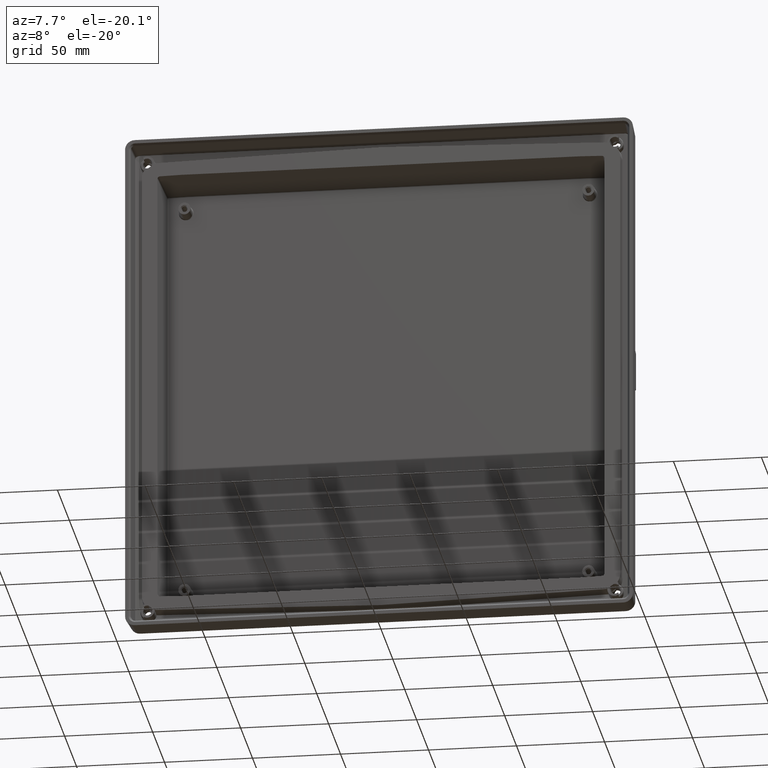
[diagram: clean part render]
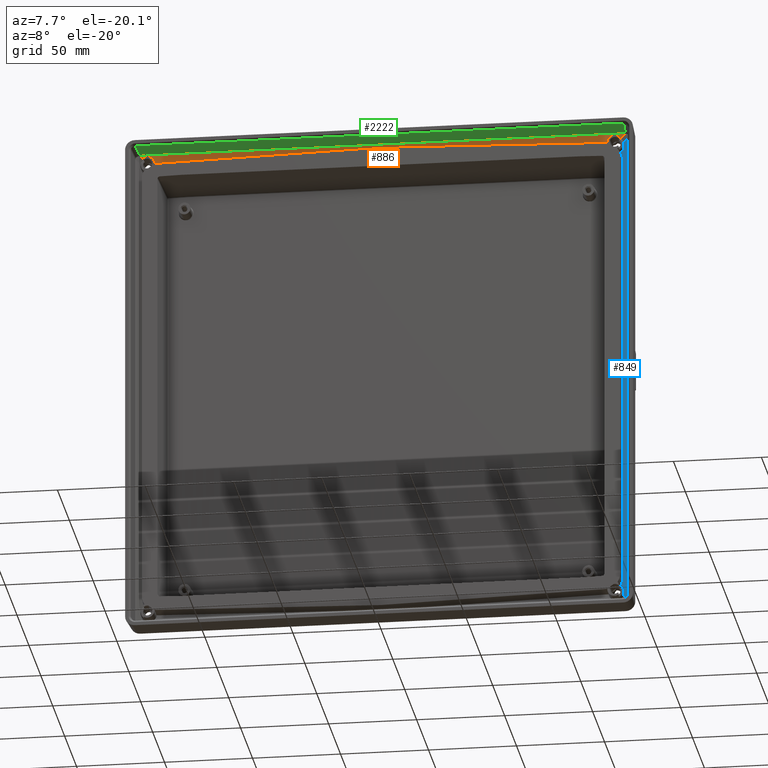
[diagram: same view with three faces highlighted in distinct colors, each labeled with its STEP entity id]
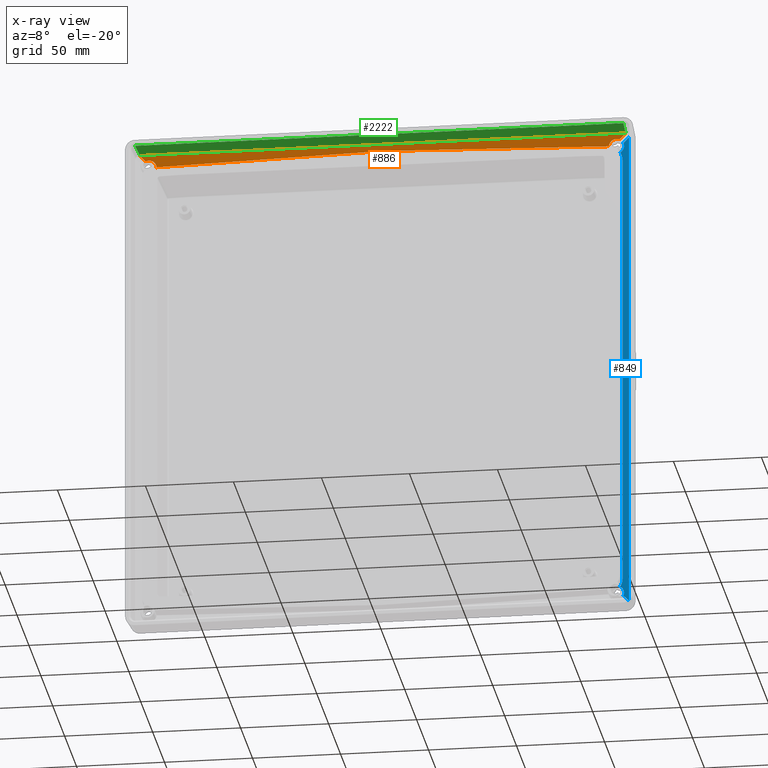
[diagram: x-ray of the same camera — body ghosted, the three highlighted faces saturated]
A machine part, auxiliary view with three faces highlighted in distinct colors.
The next image is the same camera in x-ray (body ghosted, the three faces saturated) — at least one of them is partly hidden behind the body in this view.
Their STEP definitions:

[orange] entity #886 — the highlighted planar face has unit normal (-0, -0.9954, -0.0958).
#255 = EDGE_CURVE ( 'NONE', #4577, #4870, #6030, .T. ) ;
#886 = ADVANCED_FACE ( 'NONE', ( #8570 ), #8564, .T. ) ;
#887 = EDGE_LOOP ( 'NONE', ( #888, #891, #894, #897, #899, #1008, #1011, #1013, #1014, #1015, #1016 ) ) ;
#888 = ORIENTED_EDGE ( 'NONE', *, *, #889, .F. ) ;
#889 = EDGE_CURVE ( 'NONE', #890, #4467, #8565, .T. ) ;
#890 = VERTEX_POINT ( 'NONE', #8556 ) ;
#891 = ORIENTED_EDGE ( 'NONE', *, *, #892, .F. ) ;
#892 = EDGE_CURVE ( 'NONE', #893, #890, #8555, .T. ) ;
#893 = VERTEX_POINT ( 'NONE', #8554 ) ;
#894 = ORIENTED_EDGE ( 'NONE', *, *, #895, .T. ) ;
#895 = EDGE_CURVE ( 'NONE', #893, #4803, #8596, .T. ) ;
#897 = ORIENTED_EDGE ( 'NONE', *, *, #4802, .T. ) ;
#899 = ORIENTED_EDGE ( 'NONE', *, *, #906, .T. ) ;
#906 = EDGE_CURVE ( 'NONE', #4804, #908, #8576, .T. ) ;
#908 = VERTEX_POINT ( 'NONE', #8572 ) ;
#1008 = ORIENTED_EDGE ( 'NONE', *, *, #1010, .T. ) ;
#1010 = EDGE_CURVE ( 'NONE', #908, #5002, #8805, .T. ) ;
#1011 = ORIENTED_EDGE ( 'NONE', *, *, #4575, .F. ) ;
#1013 = ORIENTED_EDGE ( 'NONE', *, *, #255, .T. ) ;
#1014 = ORIENTED_EDGE ( 'NONE', *, *, #4869, .T. ) ;
#1015 = ORIENTED_EDGE ( 'NONE', *, *, #11764, .T. ) ;
#1016 = ORIENTED_EDGE ( 'NONE', *, *, #4464, .T. ) ;
#2261 = CARTESIAN_POINT ( 'NONE',  ( -128.2524159291029100, 7.768420020449385200, 134.2647887320945000 ) ) ;
#2262 = CARTESIAN_POINT ( 'NONE',  ( -128.4175955402895700, 7.769956374794990200, 134.2488330821595100 ) ) ;
#2264 = CARTESIAN_POINT ( 'NONE',  ( -128.5001006759299000, 7.770836529166409400, 134.2396923295205200 ) ) ;
#2276 = B_SPLINE_CURVE_WITH_KNOTS ( 'NONE', 3,
 ( #2264, #2262, #2261, #2393, #2391, #2389 ),
 .UNSPECIFIED., .F., .F.,
 ( 4, 1, 1, 4 ),
 ( 0.0000000000000000000, 0.0002489694546343755900, 0.0004979063370154125400, 0.0007468106473888392500 ),
 .UNSPECIFIED. ) ;
#2389 = CARTESIAN_POINT ( 'NONE',  ( -127.7552400166260000, 7.765937555912247900, 134.2905701120499800 ) ) ;
#2391 = CARTESIAN_POINT ( 'NONE',  ( -127.8382044720705600, 7.766145752610099400, 134.2884079066720100 ) ) ;
#2393 = CARTESIAN_POINT ( 'NONE',  ( -128.0040037234524600, 7.766786210836766500, 134.2817564936748300 ) ) ;
#4460 = VERTEX_POINT ( 'NONE', #15584 ) ;
#4464 = EDGE_CURVE ( 'NONE', #4460, #4467, #15582, .T. ) ;
#4467 = VERTEX_POINT ( 'NONE', #15577 ) ;
#4575 = EDGE_CURVE ( 'NONE', #4577, #5002, #15855, .T. ) ;
#4577 = VERTEX_POINT ( 'NONE', #15851 ) ;
#4802 = EDGE_CURVE ( 'NONE', #4803, #4804, #16430, .T. ) ;
#4803 = VERTEX_POINT ( 'NONE', #16421 ) ;
#4804 = VERTEX_POINT ( 'NONE', #16431 ) ;
#4869 = EDGE_CURVE ( 'NONE', #4870, #4871, #16642, .T. ) ;
#4870 = VERTEX_POINT ( 'NONE', #16606 ) ;
#4871 = VERTEX_POINT ( 'NONE', #16641 ) ;
#5002 = VERTEX_POINT ( 'NONE', #17484 ) ;
#6020 = CARTESIAN_POINT ( 'NONE',  ( -134.0295040380416100, 7.386856864898802200, 138.2274736136379000 ) ) ;
#6021 = CARTESIAN_POINT ( 'NONE',  ( -134.5996398206980000, 7.410411838996680000, 137.9828458544190500 ) ) ;
#6030 = B_SPLINE_CURVE_WITH_KNOTS ( 'NONE', 3,
 ( #6021, #6020, #6043, #6042 ),
 .UNSPECIFIED., .F., .F.,
 ( 4, 4 ),
 ( 0.0000000000000000000, 0.2142173918799617800 ),
 .UNSPECIFIED. ) ;
#6042 = CARTESIAN_POINT ( 'NONE',  ( -132.8500003376093700, 7.375137241946365700, 138.3493657839435700 ) ) ;
#6043 = CARTESIAN_POINT ( 'NONE',  ( -133.4462908770192400, 7.375100147021089300, 138.3495717971571300 ) ) ;
#8548 = CARTESIAN_POINT ( 'NONE',  ( 127.7552400167181200, 7.765937555912554300, 134.2905701120463700 ) ) ;
#8549 = CARTESIAN_POINT ( 'NONE',  ( 127.8382044720705600, 7.766145752610103000, 134.2884079066719800 ) ) ;
#8550 = CARTESIAN_POINT ( 'NONE',  ( 128.0040037234524600, 7.766786210836770000, 134.2817564936747500 ) ) ;
#8551 = CARTESIAN_POINT ( 'NONE',  ( 128.2524159291029100, 7.768420020449387000, 134.2647887320944400 ) ) ;
#8552 = CARTESIAN_POINT ( 'NONE',  ( 128.4175955402895700, 7.769956374794993800, 134.2488330821594500 ) ) ;
#8553 = CARTESIAN_POINT ( 'NONE',  ( 128.5001006759297900, 7.770836529166359700, 134.2396923295210600 ) ) ;
#8554 = CARTESIAN_POINT ( 'NONE',  ( 128.5001006759297900, 7.770836529166359700, 134.2396923295210600 ) ) ;
#8555 = B_SPLINE_CURVE_WITH_KNOTS ( 'NONE', 3,
 ( #8553, #8552, #8551, #8550, #8549, #8548 ),
 .UNSPECIFIED., .F., .F.,
 ( 4, 1, 1, 4 ),
 ( 0.0000000000000000000, 0.0002489694546343755900, 0.0004979063370154125400, 0.0007468106473888392500 ),
 .UNSPECIFIED. ) ;
#8556 = CARTESIAN_POINT ( 'NONE',  ( 127.7552400167181200, 7.765937555912554300, 134.2905701120463700 ) ) ;
#8557 = DIRECTION ( 'NONE',  ( -0.9996576131663083000, -0.002507894251009768600, 0.02604547763173309000 ) ) ;
#8558 = VECTOR ( 'NONE', #8557, 1000.000000000000100 ) ;
#8559 = CARTESIAN_POINT ( 'NONE',  ( 63.87762000831258300, 7.605684371344762200, 135.9548630671400200 ) ) ;
#8560 = DIRECTION ( 'NONE',  ( 0.0000000000000000000, 0.09584575252022101100, -0.9953961983671790700 ) ) ;
#8561 = DIRECTION ( 'NONE',  ( -1.132255010869580200E-017, -0.9953961983671790700, -0.09584575252022101100 ) ) ;
#8562 = CARTESIAN_POINT ( 'NONE',  ( -91.62592220716959400, 6.814732165225030300, 144.1692157991049900 ) ) ;
#8563 = AXIS2_PLACEMENT_3D ( 'NONE', #8562, #8561, #8560 ) ;
#8564 = PLANE ( 'NONE',  #8563 ) ;
#8565 = LINE ( 'NONE', #8559, #8558 ) ;
#8570 = FACE_OUTER_BOUND ( 'NONE', #887, .T. ) ;
#8572 = CARTESIAN_POINT ( 'NONE',  ( 137.8138548519630400, 7.101261029202637700, 141.1970928585755300 ) ) ;
#8573 = DIRECTION ( 'NONE',  ( 0.7054734583899225900, -0.06792936783698920500, 0.7054734583899164900 ) ) ;
#8574 = VECTOR ( 'NONE', #8573, 1000.000000000000000 ) ;
#8575 = CARTESIAN_POINT ( 'NONE',  ( 136.2067466737354900, 7.255665049765963400, 139.5899527074564900 ) ) ;
#8576 = LINE ( 'NONE', #8575, #8574 ) ;
#8577 = CARTESIAN_POINT ( 'NONE',  ( 132.8499999999999900, 7.375098340226429600, 138.3495905614370800 ) ) ;
#8578 = CARTESIAN_POINT ( 'NONE',  ( 132.2815947191391800, 7.375486993026820300, 138.3455542477786400 ) ) ;
#8579 = CARTESIAN_POINT ( 'NONE',  ( 131.7445202702257100, 7.385426304648569300, 138.2423305498835800 ) ) ;
#8580 = CARTESIAN_POINT ( 'NONE',  ( 131.1755587011388400, 7.407352521397061000, 138.0146180824853300 ) ) ;
#8581 = CARTESIAN_POINT ( 'NONE',  ( 131.1096031370447900, 7.410059927652357100, 137.9865005934668100 ) ) ;
#8582 = CARTESIAN_POINT ( 'NONE',  ( 130.9831946310256100, 7.415594004013935400, 137.9290270129801300 ) ) ;
#8583 = CARTESIAN_POINT ( 'NONE',  ( 130.7963468821920100, 7.424285542357188700, 137.8387619360481200 ) ) ;
#8584 = CARTESIAN_POINT ( 'NONE',  ( 130.3797238729488600, 7.447298765097698900, 137.5997604797943000 ) ) ;
#8585 = CARTESIAN_POINT ( 'NONE',  ( 130.0557985588001200, 7.471709470200273100, 137.3462456142977400 ) ) ;
#8586 = CARTESIAN_POINT ( 'NONE',  ( 129.4521880936302100, 7.526777661219703000, 136.7743405840761600 ) ) ;
#8587 = CARTESIAN_POINT ( 'NONE',  ( 129.1333977581382700, 7.569493402204006600, 136.3307206523818100 ) ) ;
#8588 = CARTESIAN_POINT ( 'NONE',  ( 128.8682493608045800, 7.624355407079361800, 135.7609569471387100 ) ) ;
#8589 = CARTESIAN_POINT ( 'NONE',  ( 128.8417987407012200, 7.630194503541991600, 135.7003156117850200 ) ) ;
#8590 = CARTESIAN_POINT ( 'NONE',  ( 128.7904426712237300, 7.642285351707793800, 135.5747473525475800 ) ) ;
#8591 = CARTESIAN_POINT ( 'NONE',  ( 128.7179640506702500, 7.660577597340182600, 135.3847751181678500 ) ) ;
#8592 = CARTESIAN_POINT ( 'NONE',  ( 128.5807356550192300, 7.704351317501554800, 134.9301676526170600 ) ) ;
#8593 = CARTESIAN_POINT ( 'NONE',  ( 128.5177771198444200, 7.743743329672673400, 134.5210659644343700 ) ) ;
#8594 = CARTESIAN_POINT ( 'NONE',  ( 128.5001006759297900, 7.770836529166359700, 134.2396923295210600 ) ) ;
#8596 = B_SPLINE_CURVE_WITH_KNOTS ( 'NONE', 3,
 ( #8594, #8593, #8592, #8591, #8590, #8589, #8588, #8587, #8586, #8585, #8584, #8583, #8582, #8581, #8580, #8579, #8578, #8577 ),
 .UNSPECIFIED., .F., .F.,
 ( 4, 1, 1, 2, 2, 2, 1, 1, 2, 2, 4 ),
 ( 0.0000000000000000000, 0.1249999999999727200, 0.1874999999999636700, 0.2187499999999630600, 0.2499999999999624200, 0.4999999999999958900, 0.6250000000000083300, 0.6875000000000164300, 0.7187500000000176500, 0.7500000000000187600, 1.000000000000000000 ),
 .UNSPECIFIED. ) ;
#8794 = DIRECTION ( 'NONE',  ( -1.000000000000000000, 0.0000000000000000000, 1.006995111104295100E-016 ) ) ;
#8795 = VECTOR ( 'NONE', #8794, 1000.000000000000000 ) ;
#8804 = CARTESIAN_POINT ( 'NONE',  ( 0.0000000000000000000, 7.100918260535249400, 141.1970595604940100 ) ) ;
#8805 = LINE ( 'NONE', #8804, #8795 ) ;
#11764 = EDGE_CURVE ( 'NONE', #4871, #4460, #2276, .T. ) ;
#15577 = CARTESIAN_POINT ( 'NONE',  ( 7.105427357601001900E-015, 7.445431186777276400, 137.6191560222301000 ) ) ;
#15579 = DIRECTION ( 'NONE',  ( 0.9996576131663083000, -0.002507894251009780800, 0.02604547763173299700 ) ) ;
#15580 = VECTOR ( 'NONE', #15579, 1000.000000000000100 ) ;
#15581 = CARTESIAN_POINT ( 'NONE',  ( -63.87762000831341400, 7.605684371344760400, 135.9548630671400500 ) ) ;
#15582 = LINE ( 'NONE', #15581, #15580 ) ;
#15584 = CARTESIAN_POINT ( 'NONE',  ( -127.7552400166260000, 7.765937555912247900, 134.2905701120499800 ) ) ;
#15851 = CARTESIAN_POINT ( 'NONE',  ( -134.5996398206980000, 7.410411838996680000, 137.9828458544190500 ) ) ;
#15852 = DIRECTION ( 'NONE',  ( -0.7054734583899225900, -0.06792936783698959300, 0.7054734583899164900 ) ) ;
#15853 = VECTOR ( 'NONE', #15852, 1000.000000000000000 ) ;
#15854 = CARTESIAN_POINT ( 'NONE',  ( -136.2067466737354900, 7.255665049765861200, 139.5899527074564600 ) ) ;
#15855 = LINE ( 'NONE', #15854, #15853 ) ;
#16416 = CARTESIAN_POINT ( 'NONE',  ( 134.5996398206980600, 7.410411838996680000, 137.9828458544191400 ) ) ;
#16417 = CARTESIAN_POINT ( 'NONE',  ( 134.0456073953295100, 7.387073496926253900, 138.2252238040125000 ) ) ;
#16418 = CARTESIAN_POINT ( 'NONE',  ( 133.4544481500687700, 7.375151675678302400, 138.3490366515909200 ) ) ;
#16419 = CARTESIAN_POINT ( 'NONE',  ( 132.8499999999999900, 7.375098340226429600, 138.3495905614370800 ) ) ;
#16421 = CARTESIAN_POINT ( 'NONE',  ( 132.8499999999999900, 7.375098340226429600, 138.3495905614370800 ) ) ;
#16430 = B_SPLINE_CURVE_WITH_KNOTS ( 'NONE', 3,
 ( #16419, #16418, #16417, #16416 ),
 .UNSPECIFIED., .F., .F.,
 ( 4, 4 ),
 ( 0.0000000000000000000, 1.000000000000000000 ),
 .UNSPECIFIED. ) ;
#16431 = CARTESIAN_POINT ( 'NONE',  ( 134.5996398206980600, 7.410411838996680000, 137.9828458544191400 ) ) ;
#16606 = CARTESIAN_POINT ( 'NONE',  ( -132.8500003376093700, 7.375137241946365700, 138.3493657839435700 ) ) ;
#16620 = CARTESIAN_POINT ( 'NONE',  ( -128.5001006759299000, 7.770836529166409400, 134.2396923295205200 ) ) ;
#16621 = CARTESIAN_POINT ( 'NONE',  ( -128.5366967969512200, 7.716360752999539900, 134.8054448962622300 ) ) ;
#16622 = CARTESIAN_POINT ( 'NONE',  ( -128.7025712162328500, 7.652690468013366500, 135.4666860880491900 ) ) ;
#16623 = CARTESIAN_POINT ( 'NONE',  ( -129.0186072205208300, 7.594550727055223900, 136.0704903840359100 ) ) ;
#16624 = CARTESIAN_POINT ( 'NONE',  ( -129.1570345490365000, 7.571737274194208400, 136.3074171507666400 ) ) ;
#16625 = CARTESIAN_POINT ( 'NONE',  ( -129.2331807931173000, 7.560415743429874000, 136.4249957433092400 ) ) ;
#16626 = CARTESIAN_POINT ( 'NONE',  ( -129.4739270081359700, 7.528110159711527400, 136.7605020581299300 ) ) ;
#16627 = CARTESIAN_POINT ( 'NONE',  ( -129.6547293450907100, 7.508183795086635500, 136.9674452671230300 ) ) ;
#16628 = CARTESIAN_POINT ( 'NONE',  ( -130.0543578861261800, 7.471740046918030000, 137.3459280629425300 ) ) ;
#16629 = CARTESIAN_POINT ( 'NONE',  ( -130.2703675379065100, 7.455484259135634100, 137.5147508739132400 ) ) ;
#16630 = CARTESIAN_POINT ( 'NONE',  ( -130.7347776039920900, 7.426904856174644500, 137.8115593219763500 ) ) ;
#16631 = CARTESIAN_POINT ( 'NONE',  ( -130.9805838553573700, 7.414734798755847400, 137.9379502007586500 ) ) ;
#16632 = CARTESIAN_POINT ( 'NONE',  ( -131.4906929142752900, 7.395149622721382000, 138.1413500307610000 ) ) ;
#16633 = CARTESIAN_POINT ( 'NONE',  ( -131.7567184895905000, 7.387641554260336600, 138.2193243030338000 ) ) ;
#16634 = CARTESIAN_POINT ( 'NONE',  ( -132.2975862160070600, 7.377676364720937100, 138.3228167533793600 ) ) ;
#16635 = CARTESIAN_POINT ( 'NONE',  ( -132.5765895683617500, 7.375160731498625400, 138.3489426033010500 ) ) ;
#16636 = CARTESIAN_POINT ( 'NONE',  ( -132.8500003376093700, 7.375137241946365700, 138.3493657839435700 ) ) ;
#16641 = CARTESIAN_POINT ( 'NONE',  ( -128.5001006759299000, 7.770836529166409400, 134.2396923295205200 ) ) ;
#16642 = B_SPLINE_CURVE_WITH_KNOTS ( 'NONE', 3,
 ( #16636, #16635, #16634, #16633, #16632, #16631, #16630, #16629, #16628, #16627, #16626, #16625, #16624, #16623, #16622, #16621, #16620 ),
 .UNSPECIFIED., .F., .F.,
 ( 4, 2, 2, 2, 2, 2, 2, 1, 4 ),
 ( 0.2142173918799617800, 0.3124402178949694000, 0.4106630439099770400, 0.5088858699249846400, 0.6071086959399922800, 0.7053315219549999300, 0.7544429349625038100, 0.8035543479700075800, 1.000000000000000000 ),
 .UNSPECIFIED. ) ;
#17484 = CARTESIAN_POINT ( 'NONE',  ( -137.8138548517454200, 7.100918260535249400, 141.1970595604940100 ) ) ;

[blue] entity #849 — the highlighted planar face has unit normal (-0.0958, -0.9954, -0).
#803 = VERTEX_POINT ( 'NONE', #8246 ) ;
#845 = VERTEX_POINT ( 'NONE', #8335 ) ;
#847 = EDGE_CURVE ( 'NONE', #845, #861, #8400, .T. ) ;
#849 = ADVANCED_FACE ( 'NONE', ( #8402 ), #8401, .T. ) ;
#850 = EDGE_LOOP ( 'NONE', ( #851, #923, #925, #926, #930, #933, #934, #935 ) ) ;
#851 = ORIENTED_EDGE ( 'NONE', *, *, #847, .F. ) ;
#853 = EDGE_CURVE ( 'NONE', #881, #4840, #8378, .T. ) ;
#861 = VERTEX_POINT ( 'NONE', #8412 ) ;
#863 = EDGE_CURVE ( 'NONE', #861, #881, #8411, .T. ) ;
#869 = VERTEX_POINT ( 'NONE', #8496 ) ;
#871 = EDGE_CURVE ( 'NONE', #803, #869, #8498, .T. ) ;
#881 = VERTEX_POINT ( 'NONE', #8527 ) ;
#923 = ORIENTED_EDGE ( 'NONE', *, *, #924, .F. ) ;
#924 = EDGE_CURVE ( 'NONE', #803, #845, #8693, .T. ) ;
#925 = ORIENTED_EDGE ( 'NONE', *, *, #871, .T. ) ;
#926 = ORIENTED_EDGE ( 'NONE', *, *, #928, .F. ) ;
#928 = EDGE_CURVE ( 'NONE', #929, #869, #8668, .T. ) ;
#929 = VERTEX_POINT ( 'NONE', #8688 ) ;
#930 = ORIENTED_EDGE ( 'NONE', *, *, #931, .T. ) ;
#931 = EDGE_CURVE ( 'NONE', #929, #4847, #8687, .T. ) ;
#933 = ORIENTED_EDGE ( 'NONE', *, *, #4842, .T. ) ;
#934 = ORIENTED_EDGE ( 'NONE', *, *, #853, .F. ) ;
#935 = ORIENTED_EDGE ( 'NONE', *, *, #863, .F. ) ;
#4840 = VERTEX_POINT ( 'NONE', #16540 ) ;
#4842 = EDGE_CURVE ( 'NONE', #4847, #4840, #16535, .T. ) ;
#4847 = VERTEX_POINT ( 'NONE', #16527 ) ;
#8246 = CARTESIAN_POINT ( 'NONE',  ( 136.8328458544191300, 7.410411838996680000, -135.7496398206980600 ) ) ;
#8335 = CARTESIAN_POINT ( 'NONE',  ( 134.9498922376680200, 7.591719650553727700, -130.1865635245009400 ) ) ;
#8375 = CARTESIAN_POINT ( 'NONE',  ( 136.2972105654543200, 7.462014957516154300, 125.8749011615707200 ) ) ;
#8376 = CARTESIAN_POINT ( 'NONE',  ( 136.2972091415740000, 7.461987788256188900, 125.4901239451840200 ) ) ;
#8378 = B_SPLINE_CURVE_WITH_KNOTS ( 'NONE', 3,
 ( #8376, #8375, #8437, #8436, #8435, #8434, #8433, #8432, #8431, #8430, #8429, #8428, #8427, #8426, #8425, #8424, #8423, #8422 ),
 .UNSPECIFIED., .F., .F.,
 ( 4, 2, 2, 1, 1, 1, 1, 2, 2, 2, 4 ),
 ( 0.0000000000000000000, 0.2500000000005520600, 0.3750000000008292300, 0.4375000000009581800, 0.4687500000010149100, 0.4843750000010452700, 0.4921875000010583800, 0.4960937500010594900, 0.5000000000010604900, 0.7500000000005302400, 1.000000000000000000 ),
 .UNSPECIFIED. ) ;
#8379 = DIRECTION ( 'NONE',  ( 0.9953961983671790700, -0.09584575252022101100, 0.0000000000000000000 ) ) ;
#8380 = CARTESIAN_POINT ( 'NONE',  ( 136.2972091415740000, 7.461987788256191600, -125.4901239451840200 ) ) ;
#8381 = CARTESIAN_POINT ( 'NONE',  ( 136.2972120871806100, 7.462043993780015100, -126.2596784523276600 ) ) ;
#8382 = CARTESIAN_POINT ( 'NONE',  ( 136.1964617052173000, 7.471696914008217200, -127.0871289942491300 ) ) ;
#8383 = CARTESIAN_POINT ( 'NONE',  ( 135.9515926777790500, 7.495273837700888300, -127.9404777169309600 ) ) ;
#8384 = CARTESIAN_POINT ( 'NONE',  ( 135.9505012011871400, 7.495378945973359700, -127.9442634853542300 ) ) ;
#8385 = CARTESIAN_POINT ( 'NONE',  ( 135.9474904601976600, 7.495668897203251500, -127.9546835938883200 ) ) ;
#8386 = CARTESIAN_POINT ( 'NONE',  ( 135.9429532534662700, 7.496105903360223100, -127.9703329690801500 ) ) ;
#8387 = CARTESIAN_POINT ( 'NONE',  ( 135.9322179226998100, 7.497140207020532200, -128.0069822144131700 ) ) ;
#8388 = CARTESIAN_POINT ( 'NONE',  ( 135.9101463971845800, 7.499267848028361000, -128.0808131961201800 ) ) ;
#8389 = CARTESIAN_POINT ( 'NONE',  ( 135.8901745017352600, 7.501194615376378200, -128.1449970340909200 ) ) ;
#8390 = CARTESIAN_POINT ( 'NONE',  ( 135.8487630955495700, 7.505190728762031900, -128.2745288073228400 ) ) ;
#8391 = CARTESIAN_POINT ( 'NONE',  ( 135.8191988475780900, 7.508044854787942600, -128.3624363385098100 ) ) ;
#8392 = CARTESIAN_POINT ( 'NONE',  ( 135.7241245746385500, 7.517220517964337200, -128.6304982726462100 ) ) ;
#8393 = CARTESIAN_POINT ( 'NONE',  ( 135.6522339922979100, 7.524154480277287500, -128.8150078626009900 ) ) ;
#8394 = CARTESIAN_POINT ( 'NONE',  ( 135.4068735861838800, 7.547783206686104600, -129.3828471958065600 ) ) ;
#8395 = CARTESIAN_POINT ( 'NONE',  ( 135.2036539168420600, 7.567292600100029400, -129.7807894764057400 ) ) ;
#8396 = DIRECTION ( 'NONE',  ( -0.09584575252022101100, -0.9953961983671790700, -9.206565325456830900E-018 ) ) ;
#8397 = CARTESIAN_POINT ( 'NONE',  ( 143.0192157991050100, 6.814732165225030300, 144.4759222071699900 ) ) ;
#8398 = AXIS2_PLACEMENT_3D ( 'NONE', #8397, #8396, #8379 ) ;
#8399 = CARTESIAN_POINT ( 'NONE',  ( 134.9498922376680200, 7.591719650553727700, -130.1865635245009400 ) ) ;
#8400 = B_SPLINE_CURVE_WITH_KNOTS ( 'NONE', 3,
 ( #8399, #8395, #8394, #8393, #8392, #8391, #8390, #8389, #8388, #8387, #8386, #8385, #8384, #8383, #8382, #8381, #8380 ),
 .UNSPECIFIED., .F., .F.,
 ( 4, 2, 2, 2, 1, 1, 1, 2, 2, 4 ),
 ( 0.0000000000000000000, 0.2499999999995349300, 0.3749999999992980600, 0.4374999999991796600, 0.4687499999991174800, 0.4843749999990770700, 0.4921874999990568700, 0.4960937499990563100, 0.4999999999990557600, 1.000000000000000000 ),
 .UNSPECIFIED. ) ;
#8401 = PLANE ( 'NONE',  #8398 ) ;
#8402 = FACE_OUTER_BOUND ( 'NONE', #850, .T. ) ;
#8408 = DIRECTION ( 'NONE',  ( 0.0000000000000000000, -1.036768923386290100E-017, 1.000000000000000000 ) ) ;
#8409 = VECTOR ( 'NONE', #8408, 1000.000000000000000 ) ;
#8410 = CARTESIAN_POINT ( 'NONE',  ( 136.2972091415740000, 7.461987788256190700, 0.0000000000000000000 ) ) ;
#8411 = LINE ( 'NONE', #8410, #8409 ) ;
#8412 = CARTESIAN_POINT ( 'NONE',  ( 136.2972091415740000, 7.461987788256191600, -125.4901239451840200 ) ) ;
#8422 = CARTESIAN_POINT ( 'NONE',  ( 134.9498922376680200, 7.591719650553727700, 130.1865635245009400 ) ) ;
#8423 = CARTESIAN_POINT ( 'NONE',  ( 135.2037094993363300, 7.567288981915701200, 129.7807008304187100 ) ) ;
#8424 = CARTESIAN_POINT ( 'NONE',  ( 135.4069427170765900, 7.547779003814830500, 129.3827060620127400 ) ) ;
#8425 = CARTESIAN_POINT ( 'NONE',  ( 135.7340765131968100, 7.516275281141112400, 128.6255811049208800 ) ) ;
#8426 = CARTESIAN_POINT ( 'NONE',  ( 135.8580736377462900, 7.504279873254462900, 128.2663843887037800 ) ) ;
#8427 = CARTESIAN_POINT ( 'NONE',  ( 135.9549818333403000, 7.494948238399061300, 127.9286669520358100 ) ) ;
#8428 = CARTESIAN_POINT ( 'NONE',  ( 135.9572787144697700, 7.494727074999443200, 127.9206334359711500 ) ) ;
#8429 = CARTESIAN_POINT ( 'NONE',  ( 135.9610406049795900, 7.494364874026660800, 127.9074074511658500 ) ) ;
#8430 = CARTESIAN_POINT ( 'NONE',  ( 135.9666575724179200, 7.493824096429440500, 127.8875716826733100 ) ) ;
#8431 = CARTESIAN_POINT ( 'NONE',  ( 135.9795831218219500, 7.492579903357183800, 127.8413111990948300 ) ) ;
#8432 = CARTESIAN_POINT ( 'NONE',  ( 136.0047143648923800, 7.490161637513939000, 127.7488862309236500 ) ) ;
#8433 = CARTESIAN_POINT ( 'NONE',  ( 136.0521214318754900, 7.485602678495531800, 127.5644526204279900 ) ) ;
#8434 = CARTESIAN_POINT ( 'NONE',  ( 136.0879441712838800, 7.482160900294026400, 127.4071897072826000 ) ) ;
#8435 = CARTESIAN_POINT ( 'NONE',  ( 136.1534029020003500, 7.475872557778751900, 127.0940351072853400 ) ) ;
#8436 = CARTESIAN_POINT ( 'NONE',  ( 136.1887911694265100, 7.472473721898166100, 126.8871000425030400 ) ) ;
#8437 = CARTESIAN_POINT ( 'NONE',  ( 136.2721188441579700, 7.464457105099998400, 126.2737555852042000 ) ) ;
#8489 = DIRECTION ( 'NONE',  ( 0.7054734583899225900, -0.06792936783698905200, -0.7054734583899164900 ) ) ;
#8490 = VECTOR ( 'NONE', #8489, 1000.000000000000000 ) ;
#8491 = CARTESIAN_POINT ( 'NONE',  ( 138.4399527074564600, 7.255665049765861200, -137.3567466737354700 ) ) ;
#8496 = CARTESIAN_POINT ( 'NONE',  ( 140.0470928585755200, 7.101261029202355200, -138.9638548519630800 ) ) ;
#8498 = LINE ( 'NONE', #8491, #8490 ) ;
#8527 = CARTESIAN_POINT ( 'NONE',  ( 136.2972091415740000, 7.461987788256188900, 125.4901239451840200 ) ) ;
#8668 = LINE ( 'NONE', #8692, #8690 ) ;
#8669 = CARTESIAN_POINT ( 'NONE',  ( 134.9498922376680200, 7.591719650553727700, -130.1865635245009400 ) ) ;
#8670 = CARTESIAN_POINT ( 'NONE',  ( 135.4701287723880800, 7.541739098999578900, -130.4740309071286800 ) ) ;
#8671 = CARTESIAN_POINT ( 'NONE',  ( 135.9037741117298900, 7.500552317504564700, -130.8535055922304800 ) ) ;
#8672 = CARTESIAN_POINT ( 'NONE',  ( 136.5757943961561400, 7.435766294553566500, -131.6903293722967600 ) ) ;
#8673 = CARTESIAN_POINT ( 'NONE',  ( 136.8149649258145900, 7.412167053106788500, -132.1471371908272100 ) ) ;
#8674 = CARTESIAN_POINT ( 'NONE',  ( 136.9736141564491200, 7.396898910772362600, -132.6149805451959200 ) ) ;
#8675 = CARTESIAN_POINT ( 'NONE',  ( 136.9793885064858600, 7.396343708379697000, -132.6323045072044200 ) ) ;
#8676 = CARTESIAN_POINT ( 'NONE',  ( 136.9897022801891600, 7.395353090472477600, -132.6639030734140200 ) ) ;
#8677 = CARTESIAN_POINT ( 'NONE',  ( 137.0049043825471200, 7.393894419113530100, -132.7113974532531100 ) ) ;
#8678 = CARTESIAN_POINT ( 'NONE',  ( 137.0384871441439100, 7.390681640498130800, -132.8228722768804500 ) ) ;
#8679 = CARTESIAN_POINT ( 'NONE',  ( 137.0640045637342700, 7.388254895537766500, -132.9194715293226600 ) ) ;
#8680 = CARTESIAN_POINT ( 'NONE',  ( 137.1106105982117400, 7.383837492583585200, -133.1138713858827600 ) ) ;
#8681 = CARTESIAN_POINT ( 'NONE',  ( 137.1357731546224300, 7.381474006578531400, -133.2450742385024100 ) ) ;
#8682 = CARTESIAN_POINT ( 'NONE',  ( 137.1930709561999300, 7.376127896719680200, -133.6418630106608400 ) ) ;
#8683 = CARTESIAN_POINT ( 'NONE',  ( 137.2069642338042600, 7.374889620828931000, -133.9106402816630600 ) ) ;
#8684 = CARTESIAN_POINT ( 'NONE',  ( 137.1738171751989300, 7.378152185122520000, -134.7161503610188000 ) ) ;
#8685 = CARTESIAN_POINT ( 'NONE',  ( 137.0510659967163500, 7.389630417380865300, -135.2519858592990500 ) ) ;
#8686 = CARTESIAN_POINT ( 'NONE',  ( 138.4399527074564000, 7.255665049765866600, 137.3567466737354400 ) ) ;
#8687 = LINE ( 'NONE', #8686, #8733 ) ;
#8688 = CARTESIAN_POINT ( 'NONE',  ( 140.0470595604940100, 7.100918260535249400, 138.9638535267729900 ) ) ;
#8689 = DIRECTION ( 'NONE',  ( 9.986616943506665100E-017, 0.0000000000000000000, -1.000000000000000000 ) ) ;
#8690 = VECTOR ( 'NONE', #8689, 1000.000000000000000 ) ;
#8691 = CARTESIAN_POINT ( 'NONE',  ( 136.8328458544191300, 7.410411838996680000, -135.7496398206980600 ) ) ;
#8692 = CARTESIAN_POINT ( 'NONE',  ( 140.0470595604940100, 7.100918260535249400, -6.624862464166270100E-007 ) ) ;
#8693 = B_SPLINE_CURVE_WITH_KNOTS ( 'NONE', 3,
 ( #8691, #8685, #8684, #8683, #8682, #8681, #8680, #8679, #8678, #8677, #8676, #8675, #8674, #8673, #8672, #8671, #8670, #8669 ),
 .UNSPECIFIED., .F., .F.,
 ( 4, 2, 2, 2, 1, 1, 2, 2, 2, 4 ),
 ( 0.0000000000000000000, 0.2500000000001386100, 0.3750000000002082200, 0.4375000000002420800, 0.4687500000002590200, 0.4843750000002656800, 0.4921875000002690100, 0.5000000000002723400, 0.7500000000001361100, 1.000000000000000000 ),
 .UNSPECIFIED. ) ;
#8732 = DIRECTION ( 'NONE',  ( -0.7054734583899225900, 0.06792936783698910700, -0.7054734583899164900 ) ) ;
#8733 = VECTOR ( 'NONE', #8732, 1000.000000000000000 ) ;
#16513 = CARTESIAN_POINT ( 'NONE',  ( 136.2253344179510200, 7.468908536983302100, 131.2539568359920600 ) ) ;
#16514 = CARTESIAN_POINT ( 'NONE',  ( 136.2690472070090700, 7.464699474130847000, 131.3086679504413600 ) ) ;
#16515 = CARTESIAN_POINT ( 'NONE',  ( 136.3511837151537000, 7.456790627939337700, 131.4165099051030800 ) ) ;
#16516 = CARTESIAN_POINT ( 'NONE',  ( 136.4702371045166800, 7.445327090392884100, 131.5804306986676400 ) ) ;
#16517 = CARTESIAN_POINT ( 'NONE',  ( 136.7189687363861000, 7.421376958303552500, 131.9780175813227200 ) ) ;
#16518 = CARTESIAN_POINT ( 'NONE',  ( 136.8823508037415300, 7.405645054545359200, 132.3447006767486900 ) ) ;
#16519 = CARTESIAN_POINT ( 'NONE',  ( 137.1426929727894600, 7.380576954882039700, 133.1125926527534200 ) ) ;
#16520 = CARTESIAN_POINT ( 'NONE',  ( 137.2184072094250400, 7.373286503101396300, 133.6434894966106100 ) ) ;
#16521 = CARTESIAN_POINT ( 'NONE',  ( 137.1921397421522500, 7.375815772523665700, 134.2580538051352100 ) ) ;
#16522 = CARTESIAN_POINT ( 'NONE',  ( 137.1878301297103900, 7.376230741003788600, 134.3228697057639600 ) ) ;
#16523 = CARTESIAN_POINT ( 'NONE',  ( 137.1760106788569800, 7.377368824676679500, 134.4553482137813500 ) ) ;
#16524 = CARTESIAN_POINT ( 'NONE',  ( 137.1536902716400400, 7.379518035442976600, 134.6534436600267100 ) ) ;
#16525 = CARTESIAN_POINT ( 'NONE',  ( 137.0694707049095200, 7.387627457363064000, 135.1113101574671900 ) ) ;
#16526 = CARTESIAN_POINT ( 'NONE',  ( 136.9421877336131400, 7.399883413520956100, 135.4962993659042100 ) ) ;
#16527 = CARTESIAN_POINT ( 'NONE',  ( 136.8328458544191300, 7.410411838996680000, 135.7496398206980600 ) ) ;
#16533 = CARTESIAN_POINT ( 'NONE',  ( 136.8328458544191300, 7.410411838996680000, 135.7496398206980600 ) ) ;
#16535 = B_SPLINE_CURVE_WITH_KNOTS ( 'NONE', 3,
 ( #16533, #16526, #16525, #16524, #16523, #16522, #16521, #16520, #16519, #16518, #16517, #16516, #16515, #16514, #16513, #16563, #16562, #16561 ),
 .UNSPECIFIED., .F., .F.,
 ( 4, 1, 1, 2, 2, 2, 1, 1, 2, 2, 4 ),
 ( 0.0000000000000000000, 0.1250000000000006900, 0.1875000000000025300, 0.2187500000000043000, 0.2500000000000061100, 0.4999999999999840100, 0.6249999999999769100, 0.6874999999999765700, 0.7187499999999728000, 0.7499999999999689100, 1.000000000000000000 ),
 .UNSPECIFIED. ) ;
#16540 = CARTESIAN_POINT ( 'NONE',  ( 134.9498922376680200, 7.591719650553727700, 130.1865635245009400 ) ) ;
#16561 = CARTESIAN_POINT ( 'NONE',  ( 134.9498922376680200, 7.591719650553727700, 130.1865635245009400 ) ) ;
#16562 = CARTESIAN_POINT ( 'NONE',  ( 135.4312028943722600, 7.545374705532369200, 130.4563932506115100 ) ) ;
#16563 = CARTESIAN_POINT ( 'NONE',  ( 135.8421585904864100, 7.505804172702180000, 130.7952000282283800 ) ) ;

[green] entity #2222 — the highlighted planar face has unit normal (-0, -0.0523, -0.9986).
#239 = VERTEX_POINT ( 'NONE', #5962 ) ;
#1830 = CARTESIAN_POINT ( 'NONE',  ( 138.7132651019694500, -6.944693742585392300, 142.3598389388556900 ) ) ;
#2085 = EDGE_CURVE ( 'NONE', #239, #5154, #11340, .T. ) ;
#2222 = ADVANCED_FACE ( 'NONE', ( #11642 ), #11616, .T. ) ;
#2225 = EDGE_LOOP ( 'NONE', ( #2226, #2230, #2232, #2326, #2327, #2328 ) ) ;
#2226 = ORIENTED_EDGE ( 'NONE', *, *, #2227, .T. ) ;
#2227 = EDGE_CURVE ( 'NONE', #5003, #2228, #11640, .T. ) ;
#2228 = VERTEX_POINT ( 'NONE', #11633 ) ;
#2230 = ORIENTED_EDGE ( 'NONE', *, *, #2231, .F. ) ;
#2231 = EDGE_CURVE ( 'NONE', #239, #2228, #11631, .T. ) ;
#2232 = ORIENTED_EDGE ( 'NONE', *, *, #2085, .T. ) ;
#2251 = EDGE_CURVE ( 'NONE', #5154, #4353, #11835, .T. ) ;
#2326 = ORIENTED_EDGE ( 'NONE', *, *, #2251, .T. ) ;
#2327 = ORIENTED_EDGE ( 'NONE', *, *, #4588, .F. ) ;
#2328 = ORIENTED_EDGE ( 'NONE', *, *, #5005, .T. ) ;
#4353 = VERTEX_POINT ( 'NONE', #15238 ) ;
#4588 = EDGE_CURVE ( 'NONE', #4992, #4353, #15892, .T. ) ;
#4992 = VERTEX_POINT ( 'NONE', #17376 ) ;
#5003 = VERTEX_POINT ( 'NONE', #17483 ) ;
#5005 = EDGE_CURVE ( 'NONE', #4992, #5003, #17475, .T. ) ;
#5154 = VERTEX_POINT ( 'NONE', #1830 ) ;
#5962 = CARTESIAN_POINT ( 'NONE',  ( 138.0018982143720100, 6.628995074793163400, 141.6484720512580400 ) ) ;
#11340 = LINE ( 'NONE', #11383, #11382 ) ;
#11381 = DIRECTION ( 'NONE',  ( 0.05226442768871347000, -0.9972646886342373400, 0.05226442768871347000 ) ) ;
#11382 = VECTOR ( 'NONE', #11381, 1000.000000000000100 ) ;
#11383 = CARTESIAN_POINT ( 'NONE',  ( 138.3575816581704600, -0.1578493338961740000, 142.0041554950568900 ) ) ;
#11616 = PLANE ( 'NONE',  #11641 ) ;
#11628 = CARTESIAN_POINT ( 'NONE',  ( 137.8765351811073000, 6.629258097284537000, 141.6484749951039500 ) ) ;
#11629 = CARTESIAN_POINT ( 'NONE',  ( 137.9392165204051500, 6.629231466369679600, 141.6485923069986400 ) ) ;
#11630 = CARTESIAN_POINT ( 'NONE',  ( 138.0018982143720100, 6.628995074793163400, 141.6484720512580400 ) ) ;
#11631 = B_SPLINE_CURVE_WITH_KNOTS ( 'NONE', 3,
 ( #11630, #11629, #11628, #11667 ),
 .UNSPECIFIED., .F., .F.,
 ( 4, 4 ),
 ( 0.0000000000000000000, 1.000000000000000000 ),
 .UNSPECIFIED. ) ;
#11633 = CARTESIAN_POINT ( 'NONE',  ( 137.8138537101210100, 6.629382968058675600, 141.6483524064210800 ) ) ;
#11634 = DIRECTION ( 'NONE',  ( 1.000000000000000000, -2.517487795723182100E-017, -1.006995118289272800E-016 ) ) ;
#11635 = VECTOR ( 'NONE', #11634, 1000.000000000000000 ) ;
#11636 = CARTESIAN_POINT ( 'NONE',  ( 1.526556658859590200E-013, 6.629289873374430500, 141.6484566015188600 ) ) ;
#11637 = DIRECTION ( 'NONE',  ( 0.0000000000000000000, 0.9986295347545739400, -0.05233595624294390400 ) ) ;
#11638 = DIRECTION ( 'NONE',  ( -1.174471930672920400E-016, -0.05233595624294390400, -0.9986295347545739400 ) ) ;
#11639 = CARTESIAN_POINT ( 'NONE',  ( 143.8499999999999900, -0.1570078687288319900, 142.0041113957360000 ) ) ;
#11640 = LINE ( 'NONE', #11636, #11635 ) ;
#11641 = AXIS2_PLACEMENT_3D ( 'NONE', #11639, #11638, #11637 ) ;
#11642 = FACE_OUTER_BOUND ( 'NONE', #2225, .T. ) ;
#11667 = CARTESIAN_POINT ( 'NONE',  ( 137.8138537101210100, 6.629382968058675600, 141.6483524064210800 ) ) ;
#11832 = DIRECTION ( 'NONE',  ( -1.000000000000000000, 2.188518942819055500E-017, 1.000465802431568300E-016 ) ) ;
#11833 = VECTOR ( 'NONE', #11832, 1000.000000000000000 ) ;
#11834 = CARTESIAN_POINT ( 'NONE',  ( 1.665334536937734800E-013, -6.944693742585388700, 142.3598389388556900 ) ) ;
#11835 = LINE ( 'NONE', #11834, #11833 ) ;
#15238 = CARTESIAN_POINT ( 'NONE',  ( -138.7132651019691400, -6.944693742585386100, 142.3598389388557200 ) ) ;
#15881 = DIRECTION ( 'NONE',  ( -0.05226442768872861800, -0.9972646886342366700, 0.05226442768871230500 ) ) ;
#15882 = VECTOR ( 'NONE', #15881, 1000.000000000000100 ) ;
#15883 = CARTESIAN_POINT ( 'NONE',  ( -138.3575765082546200, -0.1577510676548164500, 142.0041503451413100 ) ) ;
#15892 = LINE ( 'NONE', #15883, #15882 ) ;
#17376 = CARTESIAN_POINT ( 'NONE',  ( -138.0018879145401100, 6.629191607275753700, 141.6484617514269100 ) ) ;
#17471 = CARTESIAN_POINT ( 'NONE',  ( -137.8138537101128800, 6.629388139473134900, 141.6484514516112900 ) ) ;
#17472 = CARTESIAN_POINT ( 'NONE',  ( -137.8765317439255700, 6.629257118081309100, 141.6484583181510600 ) ) ;
#17473 = CARTESIAN_POINT ( 'NONE',  ( -137.9392098292327900, 6.629224362678531400, 141.6484600347889700 ) ) ;
#17474 = CARTESIAN_POINT ( 'NONE',  ( -138.0018879145401100, 6.629191607275753700, 141.6484617514269100 ) ) ;
#17475 = B_SPLINE_CURVE_WITH_KNOTS ( 'NONE', 3,
 ( #17474, #17473, #17472, #17471 ),
 .UNSPECIFIED., .F., .F.,
 ( 4, 4 ),
 ( 0.0000000000000000000, 1.000000000000000000 ),
 .UNSPECIFIED. ) ;
#17483 = CARTESIAN_POINT ( 'NONE',  ( -137.8138537101128800, 6.629388139473134900, 141.6484514516112900 ) ) ;